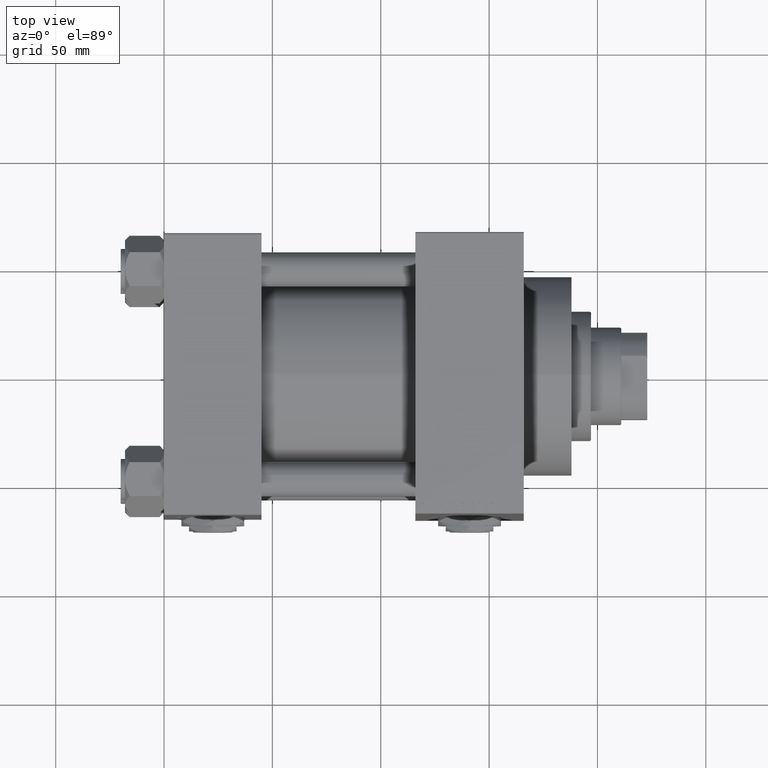
[diagram: clean part render]
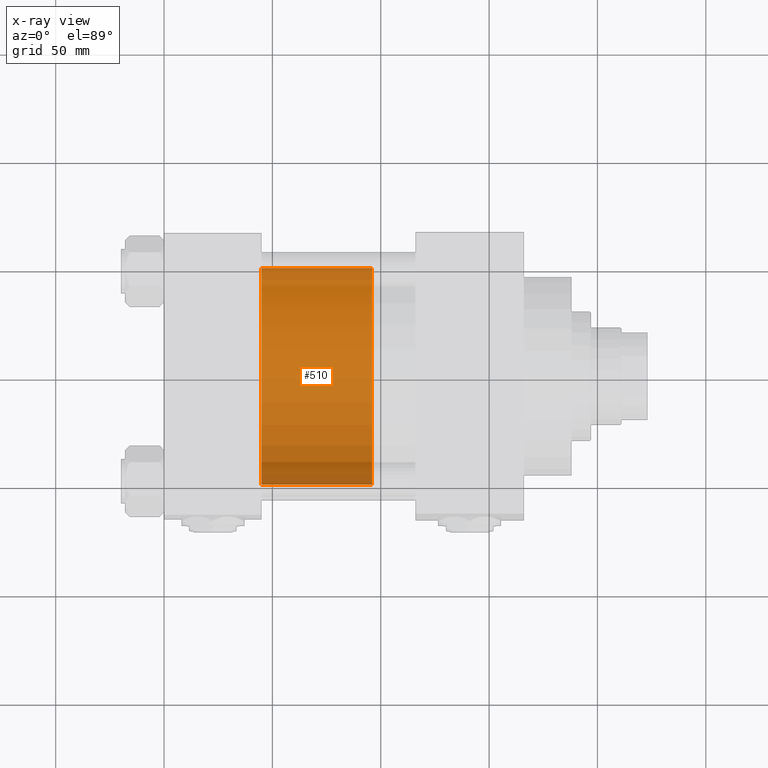
[diagram: x-ray — body ghosted, one internal face saturated and labeled with its STEP entity id]
A machine part, top view, then the same camera in x-ray: the body is ghosted and one INTERNAL B-rep face — a face not visible from any outside direction — is saturated and labeled: STEP entity #510.
In plain terms, the highlighted cylindrical surface (partial cylindrical patch) has radius 50 mm, axis along (-1, 0, 0).
Its self-contained STEP definition (entity closure, byte-faithful):
#510 = ADVANCED_FACE ( 'NONE', ( #45352 ), #26199, .T. ) ;
#777 = EDGE_CURVE ( 'NONE', #1668, #30876, #27000, .T. ) ;
#1022 = CARTESIAN_POINT ( 'NONE',  ( -50.00000000000000000, 0.000000000000000000, 51.00000000000000000 ) ) ;
#1668 = VERTEX_POINT ( 'NONE', #38167 ) ;
#2468 = ORIENTED_EDGE ( 'NONE', *, *, #9473, .F. ) ;
#7181 = CARTESIAN_POINT ( 'NONE',  ( 0.000000000000000000, 0.000000000000000000, 0.000000000000000000 ) ) ;
#8688 = DIRECTION ( 'NONE',  ( 1.000000000000000000, 0.000000000000000000, 0.000000000000000000 ) ) ;
#9473 = EDGE_CURVE ( 'NONE', #39491, #30876, #42826, .T. ) ;
#12333 = CARTESIAN_POINT ( 'NONE',  ( 0.000000000000000000, 0.000000000000000000, 51.00000000000000000 ) ) ;
#12484 = ORIENTED_EDGE ( 'NONE', *, *, #46598, .F. ) ;
#12808 = VERTEX_POINT ( 'NONE', #43612 ) ;
#13876 = LINE ( 'NONE', #25697, #42227 ) ;
#15988 = AXIS2_PLACEMENT_3D ( 'NONE', #46949, #27559, #8688 ) ;
#18394 = CIRCLE ( 'NONE', #15988, 50.00000000000000000 ) ;
#19534 = EDGE_LOOP ( 'NONE', ( #12484, #48836, #29586, #2468 ) ) ;
#22770 = DIRECTION ( 'NONE',  ( 0.000000000000000000, 0.000000000000000000, 1.000000000000000000 ) ) ;
#24261 = CARTESIAN_POINT ( 'NONE',  ( -50.00000000000000000, 0.000000000000000000, 0.000000000000000000 ) ) ;
#24304 = CARTESIAN_POINT ( 'NONE',  ( -50.00000000000000000, 0.000000000000000000, 51.00000000000000000 ) ) ;
#25697 = CARTESIAN_POINT ( 'NONE',  ( 50.00000000000000000, 6.123233995736766085E-15, 51.00000000000000000 ) ) ;
#26199 = CYLINDRICAL_SURFACE ( 'NONE', #31772, 50.00000000000000000 ) ;
#27000 = CIRCLE ( 'NONE', #32637, 50.00000000000000000 ) ;
#27559 = DIRECTION ( 'NONE',  ( 0.000000000000000000, 0.000000000000000000, 1.000000000000000000 ) ) ;
#29586 = ORIENTED_EDGE ( 'NONE', *, *, #777, .T. ) ;
#30876 = VERTEX_POINT ( 'NONE', #24261 ) ;
#31772 = AXIS2_PLACEMENT_3D ( 'NONE', #12333, #42821, #39033 ) ;
#32637 = AXIS2_PLACEMENT_3D ( 'NONE', #7181, #22770, #39565 ) ;
#32930 = VECTOR ( 'NONE', #38795, 1000.000000000000000 ) ;
#34222 = EDGE_CURVE ( 'NONE', #12808, #1668, #13876, .T. ) ;
#38167 = CARTESIAN_POINT ( 'NONE',  ( 50.00000000000000000, 6.123233995736766085E-15, 0.000000000000000000 ) ) ;
#38795 = DIRECTION ( 'NONE',  ( -0.000000000000000000, -0.000000000000000000, -1.000000000000000000 ) ) ;
#39033 = DIRECTION ( 'NONE',  ( -1.000000000000000000, 0.000000000000000000, 0.000000000000000000 ) ) ;
#39491 = VERTEX_POINT ( 'NONE', #24304 ) ;
#39565 = DIRECTION ( 'NONE',  ( 1.000000000000000000, 0.000000000000000000, 0.000000000000000000 ) ) ;
#42227 = VECTOR ( 'NONE', #45098, 1000.000000000000000 ) ;
#42821 = DIRECTION ( 'NONE',  ( -0.000000000000000000, -0.000000000000000000, -1.000000000000000000 ) ) ;
#42826 = LINE ( 'NONE', #1022, #32930 ) ;
#43612 = CARTESIAN_POINT ( 'NONE',  ( 50.00000000000000000, 6.123233995736766085E-15, 51.00000000000000000 ) ) ;
#45098 = DIRECTION ( 'NONE',  ( -0.000000000000000000, -0.000000000000000000, -1.000000000000000000 ) ) ;
#45352 = FACE_OUTER_BOUND ( 'NONE', #19534, .T. ) ;
#46598 = EDGE_CURVE ( 'NONE', #12808, #39491, #18394, .T. ) ;
#46949 = CARTESIAN_POINT ( 'NONE',  ( 0.000000000000000000, 0.000000000000000000, 51.00000000000000000 ) ) ;
#48836 = ORIENTED_EDGE ( 'NONE', *, *, #34222, .T. ) ;